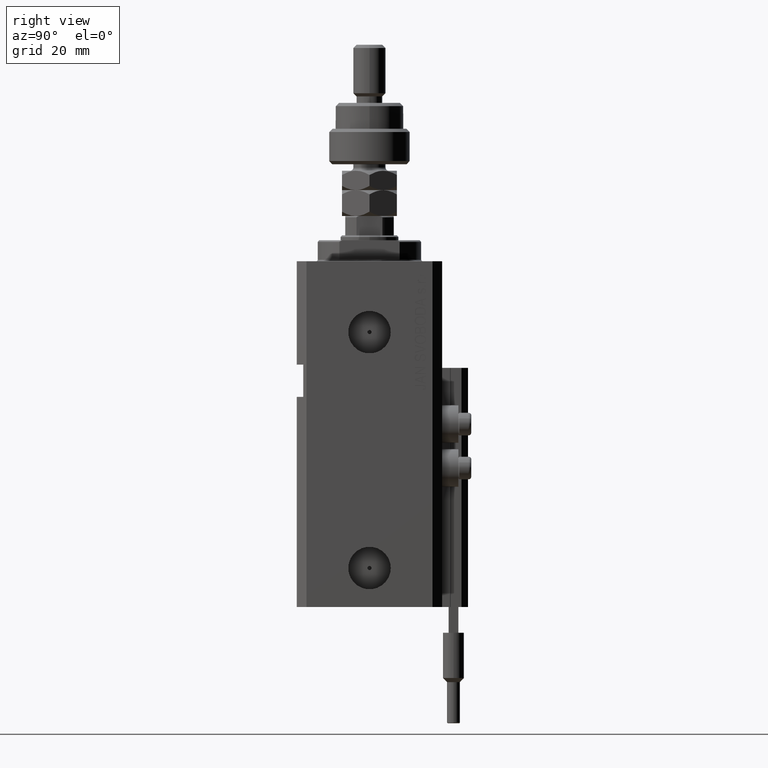
[diagram: clean part render]
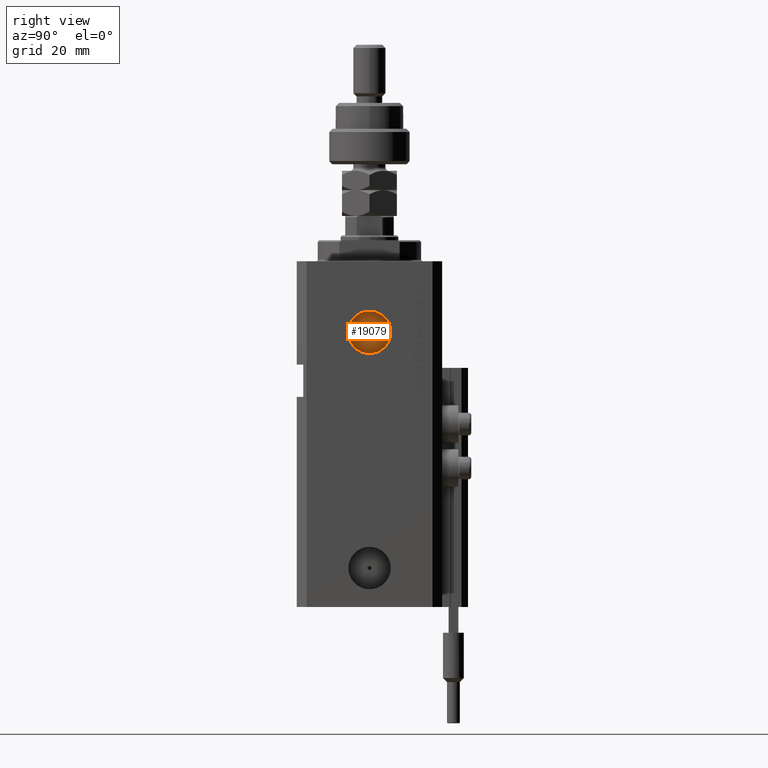
[diagram: same view with one face highlighted and labeled with its STEP entity id]
A machine part, right view. The second image highlights one B-rep face of the part: STEP entity #19079.
In plain terms, the highlighted planar face has unit normal (1, -0, 0).
Its self-contained STEP definition (entity closure, byte-faithful):
#1185 = CARTESIAN_POINT ( 'NONE',  ( 19.39999999999677271, -2.588741187226566333E-13, -22.00000000000000000 ) ) ;
#2586 = VERTEX_POINT ( 'NONE', #25516 ) ;
#4959 = ORIENTED_EDGE ( 'NONE', *, *, #43439, .T. ) ;
#5295 = VERTEX_POINT ( 'NONE', #33582 ) ;
#8577 = DIRECTION ( 'NONE',  ( 1.000000000000000000, -1.334402673828349134E-14, 0.000000000000000000 ) ) ;
#8722 = DIRECTION ( 'NONE',  ( 1.334402673828349134E-14, 1.000000000000000000, 0.000000000000000000 ) ) ;
#8822 = CARTESIAN_POINT ( 'NONE',  ( 19.39999999999677271, -2.588741187226566333E-13, -22.00000000000000000 ) ) ;
#9723 = AXIS2_PLACEMENT_3D ( 'NONE', #31457, #11450, #47039 ) ;
#11450 = DIRECTION ( 'NONE',  ( 1.000000000000000000, -1.334402673828349134E-14, 0.000000000000000000 ) ) ;
#12658 = EDGE_LOOP ( 'NONE', ( #20404, #43479 ) ) ;
#17062 = ORIENTED_EDGE ( 'NONE', *, *, #41442, .T. ) ;
#17130 = DIRECTION ( 'NONE',  ( 1.318178933113074700E-14, 1.000000000000000000, 0.000000000000000000 ) ) ;
#19079 = ADVANCED_FACE ( 'NONE', ( #44328, #20426 ), #31604, .T. ) ;
#19873 = CARTESIAN_POINT ( 'NONE',  ( 19.39999999999677271, -2.588741187226566838E-13, -22.00000000000000000 ) ) ;
#20404 = ORIENTED_EDGE ( 'NONE', *, *, #21832, .F. ) ;
#20426 = FACE_OUTER_BOUND ( 'NONE', #42345, .T. ) ;
#21832 = EDGE_CURVE ( 'NONE', #2586, #5295, #48073, .T. ) ;
#23020 = CIRCLE ( 'NONE', #30370, 6.580000000000002736 ) ;
#25516 = CARTESIAN_POINT ( 'NONE',  ( 19.39999999999677982, 0.6249999999997398747, -22.00000000000000000 ) ) ;
#27136 = DIRECTION ( 'NONE',  ( 1.000000000000000000, -1.334402673828349134E-14, 0.000000000000000000 ) ) ;
#27347 = DIRECTION ( 'NONE',  ( 1.000000000000000000, -1.334402673828349134E-14, 0.000000000000000000 ) ) ;
#27977 = CARTESIAN_POINT ( 'NONE',  ( 19.39999999999668745, -6.580000000000261196, -22.00000000000000000 ) ) ;
#30370 = AXIS2_PLACEMENT_3D ( 'NONE', #8822, #8577, #17130 ) ;
#31457 = CARTESIAN_POINT ( 'NONE',  ( 19.39999999999677271, -2.588741187226566333E-13, -22.00000000000000000 ) ) ;
#31604 = PLANE ( 'NONE',  #37170 ) ;
#33582 = CARTESIAN_POINT ( 'NONE',  ( 19.39999999999676561, -0.6250000000002576828, -22.00000000000000000 ) ) ;
#34728 = AXIS2_PLACEMENT_3D ( 'NONE', #19873, #27136, #38859 ) ;
#37170 = AXIS2_PLACEMENT_3D ( 'NONE', #1185, #39670, #8722 ) ;
#38530 = CARTESIAN_POINT ( 'NONE',  ( 19.39999999999677271, -2.588741187226566838E-13, -22.00000000000000000 ) ) ;
#38859 = DIRECTION ( 'NONE',  ( 1.110223024625158749E-14, 1.000000000000000000, 0.000000000000000000 ) ) ;
#39670 = DIRECTION ( 'NONE',  ( 1.000000000000000000, -1.334402673828349134E-14, 0.000000000000000000 ) ) ;
#41257 = CIRCLE ( 'NONE', #9723, 6.580000000000002736 ) ;
#41442 = EDGE_CURVE ( 'NONE', #49573, #43022, #23020, .T. ) ;
#42345 = EDGE_LOOP ( 'NONE', ( #4959, #17062 ) ) ;
#42451 = CARTESIAN_POINT ( 'NONE',  ( 19.39999999999686153, 6.579999999999744276, -22.00000000000000000 ) ) ;
#43022 = VERTEX_POINT ( 'NONE', #42451 ) ;
#43202 = DIRECTION ( 'NONE',  ( 1.110223024625158749E-14, 1.000000000000000000, 0.000000000000000000 ) ) ;
#43439 = EDGE_CURVE ( 'NONE', #43022, #49573, #41257, .T. ) ;
#43479 = ORIENTED_EDGE ( 'NONE', *, *, #45801, .F. ) ;
#44328 = FACE_BOUND ( 'NONE', #12658, .T. ) ;
#45801 = EDGE_CURVE ( 'NONE', #5295, #2586, #47137, .T. ) ;
#47039 = DIRECTION ( 'NONE',  ( 1.318178933113074700E-14, 1.000000000000000000, 0.000000000000000000 ) ) ;
#47137 = CIRCLE ( 'NONE', #34728, 0.6249999999999987788 ) ;
#48073 = CIRCLE ( 'NONE', #50542, 0.6249999999999987788 ) ;
#49573 = VERTEX_POINT ( 'NONE', #27977 ) ;
#50542 = AXIS2_PLACEMENT_3D ( 'NONE', #38530, #27347, #43202 ) ;